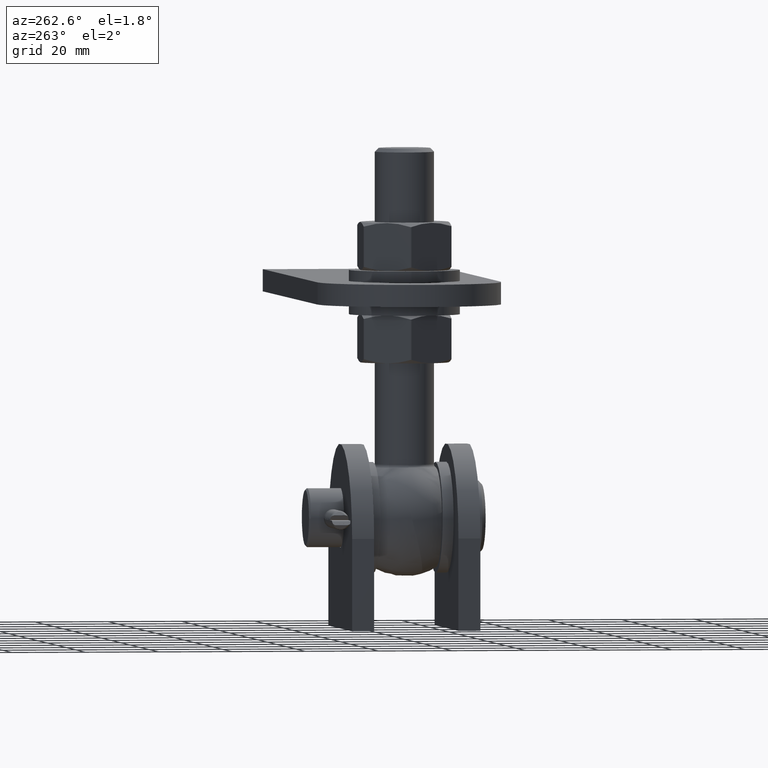
[diagram: clean part render]
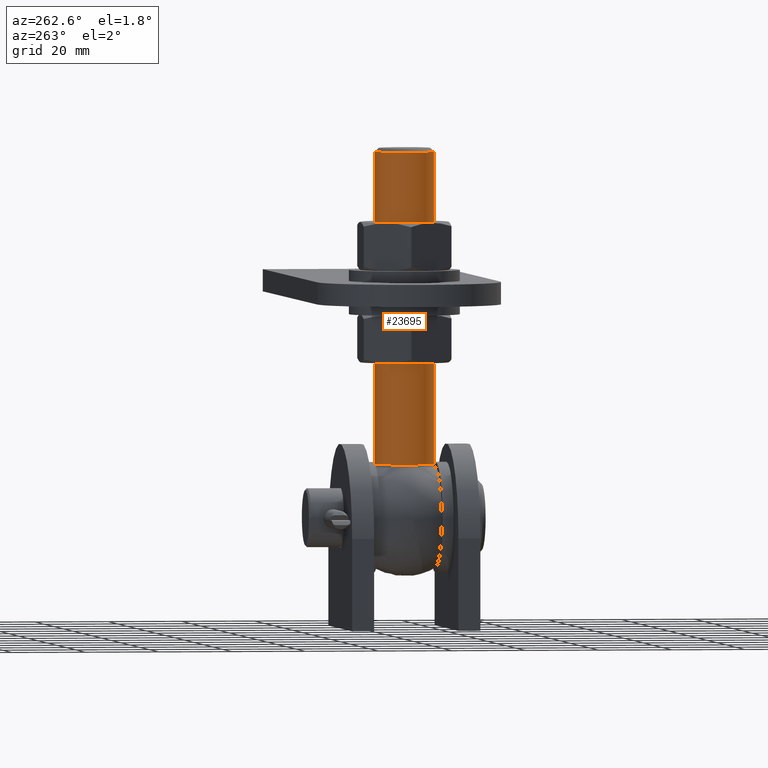
[diagram: same view with one face highlighted and labeled with its STEP entity id]
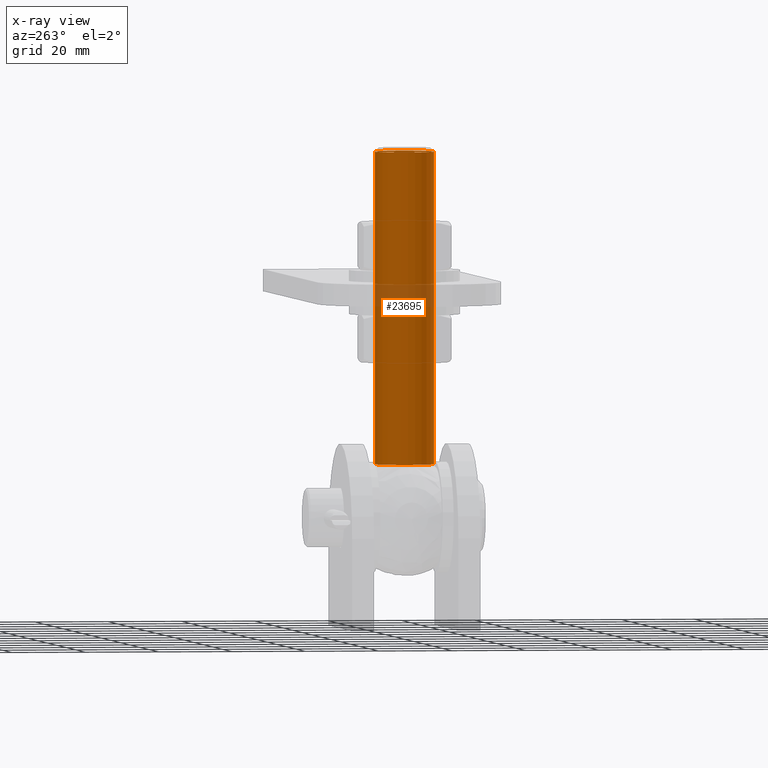
[diagram: x-ray of the same camera — body ghosted, the highlighted face saturated]
A machine part, auxiliary view. The second image highlights one B-rep face of the part: STEP entity #23695.
The next image is the same camera in x-ray: the body ghosted, the highlighted face saturated — about 7% of this face is hidden behind the body in this view.
In plain terms, the highlighted cylindrical surface (bore or boss wall) has radius 8 mm, axis along (0, 0, 1).
Its self-contained STEP definition (entity closure, byte-faithful):
#2825 = AXIS2_PLACEMENT_3D ( 'NONE', #8686, #10624, #17183 ) ;
#2962 = CYLINDRICAL_SURFACE ( 'NONE', #2825, 8.000000000000000000 ) ;
#3615 = FACE_OUTER_BOUND ( 'NONE', #11420, .T. ) ;
#4187 = CARTESIAN_POINT ( 'NONE',  ( 0.000000000000000000, 1.497599005507285966E-29, 99.00000000000000000 ) ) ;
#4713 = CARTESIAN_POINT ( 'NONE',  ( 8.000000000000000000, -5.128832598349214040E-29, 99.00000000000000000 ) ) ;
#6973 = EDGE_LOOP ( 'NONE', ( #12019 ) ) ;
#8243 = CIRCLE ( 'NONE', #12351, 8.000000000000000000 ) ;
#8686 = CARTESIAN_POINT ( 'NONE',  ( 0.000000000000000000, -2.320236081983548173E-30, -16.00200000000000244 ) ) ;
#8987 = AXIS2_PLACEMENT_3D ( 'NONE', #12413, #21149, #27569 ) ;
#9034 = FACE_OUTER_BOUND ( 'NONE', #6973, .T. ) ;
#10624 = DIRECTION ( 'NONE',  ( 0.000000000000000000, 1.477553729406833117E-31, 1.000000000000000000 ) ) ;
#11420 = EDGE_LOOP ( 'NONE', ( #22619 ) ) ;
#12019 = ORIENTED_EDGE ( 'NONE', *, *, #13045, .T. ) ;
#12351 = AXIS2_PLACEMENT_3D ( 'NONE', #4187, #12784, #21600 ) ;
#12413 = CARTESIAN_POINT ( 'NONE',  ( 0.000000000000000000, 2.175504917878932753E-30, 14.42220510185595828 ) ) ;
#12784 = DIRECTION ( 'NONE',  ( -0.000000000000000000, -1.477553729406833117E-31, -1.000000000000000000 ) ) ;
#13045 = EDGE_CURVE ( 'NONE', #16991, #16991, #15893, .T. ) ;
#15893 = CIRCLE ( 'NONE', #8987, 8.000000000000000000 ) ;
#16963 = EDGE_CURVE ( 'NONE', #21423, #21423, #8243, .T. ) ;
#16991 = VERTEX_POINT ( 'NONE', #26665 ) ;
#17183 = DIRECTION ( 'NONE',  ( 1.000000000000000000, -8.283039504820623957E-30, 0.000000000000000000 ) ) ;
#21149 = DIRECTION ( 'NONE',  ( -0.000000000000000000, 1.477553729406833117E-31, 1.000000000000000000 ) ) ;
#21423 = VERTEX_POINT ( 'NONE', #4713 ) ;
#21600 = DIRECTION ( 'NONE',  ( 1.000000000000000000, -8.283039504820623957E-30, 0.000000000000000000 ) ) ;
#22619 = ORIENTED_EDGE ( 'NONE', *, *, #16963, .T. ) ;
#23695 = ADVANCED_FACE ( 'NONE', ( #3615, #9034 ), #2962, .T. ) ;
#26665 = CARTESIAN_POINT ( 'NONE',  ( -8.000000000000000000, 6.843982095644393036E-29, 14.42220510185595828 ) ) ;
#27569 = DIRECTION ( 'NONE',  ( -1.000000000000000000, 8.283039504820623957E-30, 0.000000000000000000 ) ) ;